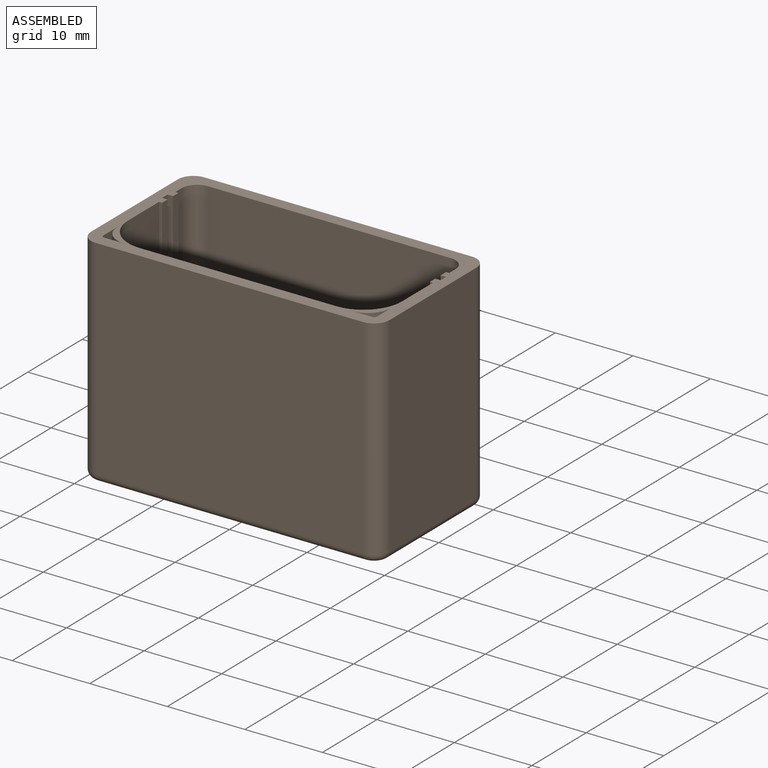
[diagram: assembled view]
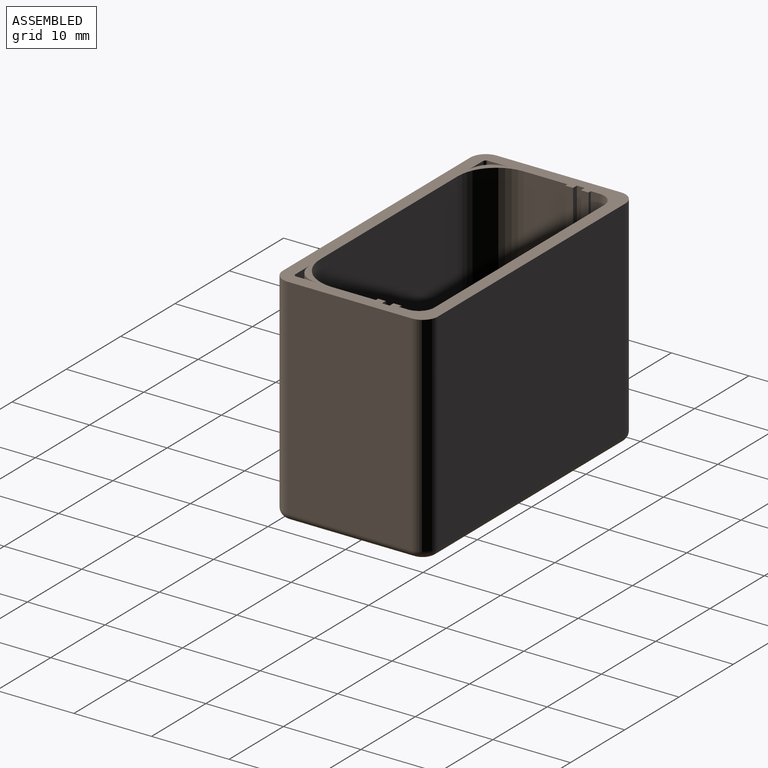
[diagram: assembled view, second angle]
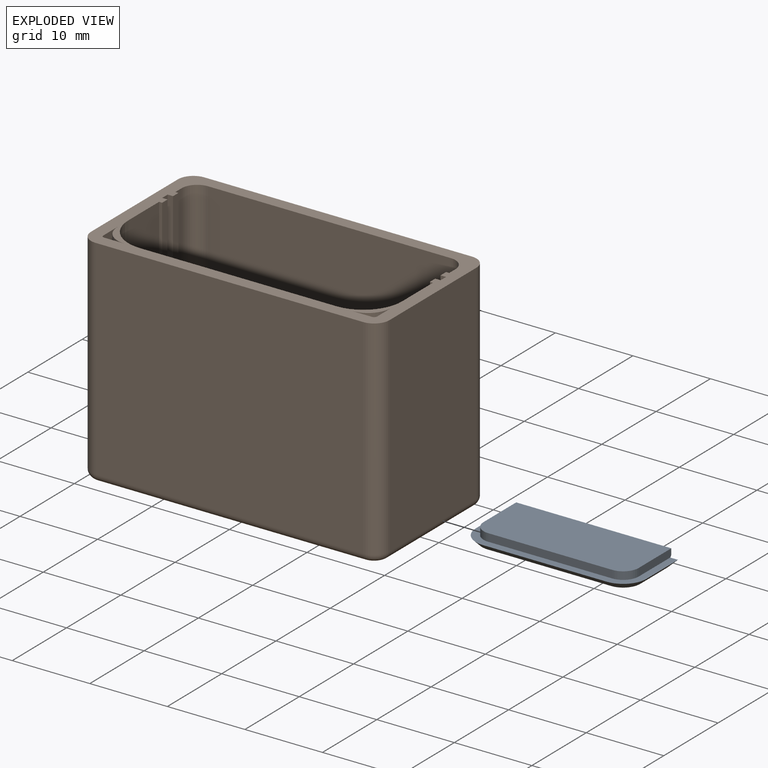
[diagram: exploded view]
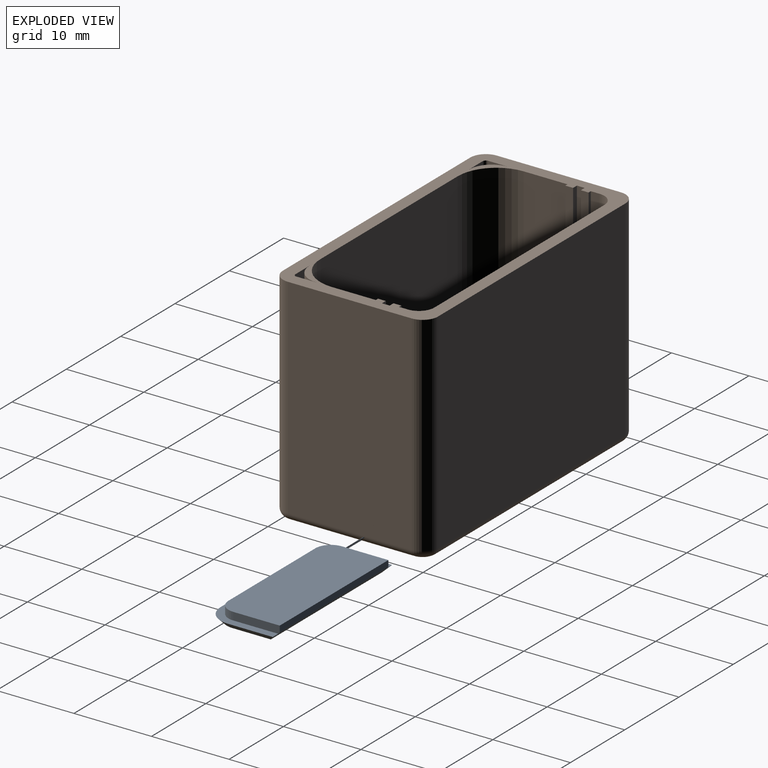
[diagram: exploded view, second angle]
ASSEMBLY  parts=2 mates=2
PART A: 15 faces, bbox 22x1.8x9 mm
  f0: plane 6x1mm, normal (1,0,0), area 6mm2, adj f4,f5,f7,f8,f14
  f1: plane 6x1mm, normal (-1,0,0), area 6mm2, adj f3,f5,f7,f8,f14
  f2: plane 16x1mm, normal (0,0,-1), area 16mm2, adj f3,f4,f7,f8
  f3: cylinder r=2mm len=2mm, axis (0,-1,0), area 3.1mm2, adj f1,f2,f7,f8
  f4: cylinder r=2mm len=2mm, axis (0,1,0), area 3.1mm2, adj f0,f2,f7,f8
  f5: plane 20x0.8mm, normal (0,0,1), area 16mm2, adj f0,f1,f7,f14
  f6: plane 20.4x7.2mm, normal (0,-1,0), area 144.8mm2, adj f9,f10,f11,f12,f13,f14
  f7: plane 20x8mm, normal (0,1,0), area 158.3mm2, adj f0,f1,f2,f3,f4,f5
  f8: plane 22x8.8mm, normal (0,1,0), area 35.5mm2, adj f0,f1,f2,f3,f4,f9,f10,f11
  f9: plane 16x0.8mm, normal (0,-0.71,-0.71), area 18.1mm2, adj f6,f8,f10,f11
  f10: cone r=2.2mm half-angle=45deg, axis (0,1,0), area 4.6mm2, adj f6,f8,f9,f12
  f11: cone r=2.2mm half-angle=45deg, axis (0,1,0), area 4.6mm2, adj f6,f8,f9,f13
  f12: plane 5.8x0.8mm, normal (0.71,-0.71,0), area 6.1mm2, adj f6,f8,f10,f14
  f13: plane 5.8x0.8mm, normal (-0.71,-0.71,0), area 6.1mm2, adj f6,f8,f11,f14
  f14: plane 22x1mm, normal (0,-0.71,0.71), area 29.6mm2, adj f0,f1,f5,f6,f8,f12,f13
PART B: 116 faces, bbox 38.8x20.3x28 mm
  f0: plane 25x2.6mm, normal (0,1,0), area 65mm2, adj f1,f48,f109,f114
  f1: plane 3x3mm, normal (0,0,1), area 1.9mm2, adj f0,f47,f48,f114
  f2: plane 25x5.65mm, normal (-1,0,0), area 140.4mm2, adj f16,f46,f91,f109,f115
  f3: plane 3x3mm, normal (0,0,1), area 1.9mm2, adj f49,f50,f51,f112
  f4: plane 25.3x25mm, normal (0,1,0), area 632.5mm2, adj f16,f109,f113,f115
  f5: plane 25x5.65mm, normal (1,0,0), area 140.4mm2, adj f16,f52,f94,f109,f113
  f6: plane 31.3x25mm, normal (0,-1,0), area 702.1mm2, adj f15,f77,f78,f80,f109,f110,f111
  f7: plane 3.5x1mm, normal (0,1,0), area 3.5mm2, adj f8,f101,f103,f105
  f8: plane 36.5x18mm, normal (0,0,-1), area 423.6mm2, adj f7,f54,f55,f56,f57,f58,f59,f60
  f9: plane 17x1mm, normal (0,1,0), area 17mm2, adj f12,f13,f63,f103
  f10: plane 7x1mm, normal (1,0,0), area 7mm2, adj f12,f62,f63,f103
  f11: plane 7x1mm, normal (-1,0,0), area 7mm2, adj f13,f62,f63,f103
  f12: cylinder r=2mm len=2mm, axis (0,0,-1), area 3.1mm2, adj f9,f10,f63,f103
  f13: cylinder r=2mm len=2mm, axis (0,0,1), area 3.1mm2, adj f9,f11,f63,f103
  f14: plane 27.26x2.01mm, normal (0,0,1), area 22.5mm2, adj f21,f23,f24,f33,f44,f45,f71,f72
  f15: plane 35.9x5.6mm, normal (0,0,1), area 89mm2, adj f6,f17,f19,f20,f21,f22,f23,f33
  f16: plane 35.3x8.65mm, normal (0,0,1), area 278mm2, adj f2,f4,f5,f91,f92,f93,f94,f95
  f17: plane 1x0.92mm, normal (0.81,0.58,0), area 1.1mm2, adj f15,f63,f65,f67
  f18: plane 6x5mm, normal (0,-1,0), area 30mm2, adj f63,f66,f69,f80
  f19: plane 1x0.92mm, normal (-0.81,0.58,0), area 1.1mm2, adj f15,f63,f64,f68
  f20: plane 4.69x1mm, normal (0,1,0), area 4.7mm2, adj f15,f63,f64,f65
  f21: plane 3x0.75mm, normal (1,0,0), area 1.8mm2, adj f14,f15,f33,f63,f70,f71
  f22: plane 13.8x1mm, normal (0,-1,0), area 13.8mm2, adj f15,f63,f70,f73
  f23: plane 3x0.75mm, normal (-1,0,0), area 1.8mm2, adj f14,f15,f44,f63,f72,f73
  f24: plane 13.8x3mm, normal (0,1,0), area 41.4mm2, adj f14,f63,f71,f72
  f25: plane 34.5x27mm, normal (0,-1,0), area 931.5mm2, adj f26,f32,f61,f109
  f26: cylinder r=2mm len=27mm, axis (0,0,-1), area 84.8mm2, adj f25,f27,f59,f109
  f27: plane 27x16mm, normal (1,0,0), area 432mm2, adj f26,f28,f57,f109
  f28: cylinder r=2mm len=27mm, axis (0,0,-1), area 84.8mm2, adj f27,f29,f55,f109
  f29: plane 34.5x27mm, normal (0,1,0), area 931.5mm2, adj f28,f30,f54,f109
  f30: cylinder r=2mm len=27mm, axis (0,0,-1), area 84.8mm2, adj f29,f31,f56,f109
  f31: plane 27x16mm, normal (-1,0,0), area 432mm2, adj f30,f32,f58,f109
  f32: cylinder r=2mm len=27mm, axis (0,0,-1), area 84.8mm2, adj f25,f31,f60,f109
  f33: plane 25x10.45mm, normal (0,1,0), area 34mm2, adj f14,f15,f21,f34,f53,f81,f88,f89
  f34: plane 25x1mm, normal (1,0,0), area 25mm2, adj f15,f33,f35,f109
  f35: plane 25x0.7mm, normal (0,-1,0), area 17.5mm2, adj f15,f34,f36,f109
  f36: plane 25x1mm, normal (1,0,0), area 25mm2, adj f15,f35,f37,f109
  f37: plane 25x0.4mm, normal (0,1,0), area 10mm2, adj f15,f36,f38,f109
  f38: plane 25x1.15mm, normal (1,0,0), area 28.8mm2, adj f15,f37,f109,f111
  f39: plane 25x1.15mm, normal (-1,0,0), area 28.8mm2, adj f15,f40,f109,f110
  f40: plane 25x0.4mm, normal (0,1,0), area 10mm2, adj f15,f39,f41,f109
  f41: plane 25x1mm, normal (-1,0,0), area 25mm2, adj f15,f40,f42,f109
  f42: plane 25x0.7mm, normal (0,-1,0), area 17.5mm2, adj f15,f41,f43,f109
  f43: plane 25x1mm, normal (-1,0,0), area 25mm2, adj f15,f42,f44,f109
  f44: plane 25x10.45mm, normal (0,1,0), area 37mm2, adj f14,f15,f23,f43,f45,f109
  f45: plane 23x1mm, normal (-1,0,0), area 23mm2, adj f14,f44,f46,f109
  f46: plane 23x0.4mm, normal (0,-1,0), area 9.2mm2, adj f2,f45,f91,f109
  f47: plane 25x2.6mm, normal (-1,0,0), area 65mm2, adj f1,f48,f109,f114
  f48: cylinder r=0.4mm len=25mm, axis (0,0,-1), area 15.7mm2, adj f0,f1,f47,f109
  f49: plane 25x2.6mm, normal (0,1,0), area 65mm2, adj f3,f50,f109,f112
  f50: cylinder r=0.4mm len=25mm, axis (0,0,-1), area 15.7mm2, adj f3,f49,f51,f109
  f51: plane 25x2.6mm, normal (1,0,0), area 65mm2, adj f3,f50,f109,f112
  f52: plane 23x0.4mm, normal (0,-1,0), area 9.2mm2, adj f5,f53,f94,f109
  f53: plane 23x1mm, normal (1,0,0), area 23mm2, adj f33,f52,f81,f109
  f54: cylinder r=1mm len=34.5mm, axis (-1,0,0), area 54.2mm2, adj f8,f29,f55,f56,f62
  f55: torus R=1mm, axis (0,0,1), area 4mm2, adj f8,f28,f54,f57
  f56: torus R=1mm, axis (0,0,1), area 4mm2, adj f8,f30,f54,f58
  f57: cylinder r=1mm len=16mm, axis (0,1,0), area 25.1mm2, adj f8,f27,f55,f59
  f58: cylinder r=1mm len=16mm, axis (0,-1,0), area 25.1mm2, adj f8,f31,f56,f60
  f59: torus R=1mm, axis (0,0,1), area 4mm2, adj f8,f26,f57,f61
  f60: torus R=1mm, axis (0,0,1), area 4mm2, adj f8,f32,f58,f61
  f61: cylinder r=1mm len=34.5mm, axis (1,0,0), area 54.2mm2, adj f8,f25,f59,f60
  f62: plane 23x2mm, normal (0,-1,0), area 44mm2, adj f10,f11,f54,f63,f98,f102,f103
  f63: plane 21x9mm, normal (0,0,-1), area 127.9mm2, adj f9,f10,f11,f12,f13,f17,f18,f19
  f64: cylinder r=1mm len=1mm, axis (0,0,1), area 1mm2, adj f15,f19,f20,f63
  f65: cylinder r=1mm len=1mm, axis (0,0,-1), area 1mm2, adj f15,f17,f20,f63
  f66: cylinder r=1mm len=5mm, axis (0,0,1), area 7.6mm2, adj f18,f63,f67,f80
  f67: cylinder r=1mm len=5mm, axis (0,0,1), area 2mm2, adj f15,f17,f63,f66,f80,f86
  f68: cylinder r=1mm len=5mm, axis (0,0,1), area 2mm2, adj f15,f19,f63,f69,f80,f87
  f69: cylinder r=1mm len=5mm, axis (0,0,-1), area 7.6mm2, adj f18,f63,f68,f80
  f70: cylinder r=0.6mm len=1mm, axis (0,0,-1), area 0.9mm2, adj f15,f21,f22,f63
  f71: cylinder r=0.6mm len=3mm, axis (0,0,-1), area 2.8mm2, adj f14,f21,f24,f63
  f72: cylinder r=0.6mm len=3mm, axis (0,0,1), area 2.8mm2, adj f14,f23,f24,f63
  f73: cylinder r=0.6mm len=1mm, axis (0,0,1), area 0.9mm2, adj f15,f22,f23,f63
  f74: plane 6.18x4mm, normal (0,-1,0), area 24.7mm2, adj f15,f79,f80,f86
  f75: plane 6.18x4mm, normal (0,-1,0), area 24.7mm2, adj f15,f76,f80,f87
  f76: plane 4x1.75mm, normal (1,0,0), area 7mm2, adj f15,f75,f77,f80
  f77: cylinder r=3.5mm len=4mm, axis (0,0,-1), area 10.6mm2, adj f6,f15,f76,f80
  f78: cylinder r=3.5mm len=4mm, axis (0,0,-1), area 10.6mm2, adj f6,f15,f79,f80
  f79: plane 4x1.75mm, normal (-1,0,0), area 7mm2, adj f15,f74,f78,f80
  f80: plane 22x4.15mm, normal (0,0,1), area 68.8mm2, adj f6,f18,f66,f67,f68,f69,f74,f75
  f81: plane 4.25x1mm, normal (0,0,1), area 4.3mm2, adj f33,f53,f88,f94
  f82: cylinder r=1.15mm len=2.5mm, axis (0,0,-1), area 18.1mm2, adj f83,f107
  f83: plane 2.3x2.3mm, normal (0,0,-1), area 4.2mm2, adj f82
  f84: cylinder r=1.15mm len=2.5mm, axis (0,0,-1), area 18.1mm2, adj f85,f108
  f85: plane 2.3x2.3mm, normal (0,0,-1), area 4.2mm2, adj f84
  f86: cylinder r=1mm len=4mm, axis (0,0,1), area 8mm2, adj f15,f67,f74,f80
  f87: cylinder r=1mm len=4mm, axis (0,0,1), area 8mm2, adj f15,f68,f75,f80
  f88: plane 1.27x1mm, normal (1,0,0), area 1.1mm2, adj f33,f81,f90,f94
  f89: plane 1.27x1mm, normal (-1,0,0), area 1.1mm2, adj f14,f33,f90,f94
  f90: plane 3x1.27mm, normal (0,0,1), area 3.8mm2, adj f33,f88,f89,f94
  f91: cylinder r=2mm len=9.11mm, axis (1,0,0), area 27.9mm2, adj f2,f14,f16,f46,f96
  f92: torus R=3.1mm, axis (0,0,1), area 5.2mm2, adj f14,f16,f93,f96
  f93: cylinder r=2mm len=13.5mm, axis (1,0,0), area 42.4mm2, adj f14,f16,f92,f95
  f94: cylinder r=2mm len=9.11mm, axis (1,0,0), area 24.7mm2, adj f5,f14,f16,f52,f81,f88,f89,f90
  f95: torus R=3.1mm, axis (0,0,1), area 5.2mm2, adj f14,f16,f93,f97
  f96: bspline ~2.16x2mm, area 1.3mm2, adj f14,f91,f92
  f97: bspline ~2.16x2mm, area 1.3mm2, adj f14,f94,f95
  f98: plane 7x1mm, normal (-1,0,0), area 7mm2, adj f8,f62,f99,f103
  f99: cylinder r=3mm len=3mm, axis (0,0,-1), area 4.7mm2, adj f8,f98,f100,f103
  f100: plane 3.5x1mm, normal (0,1,0), area 3.5mm2, adj f8,f99,f103,f106
  f101: cylinder r=3mm len=3mm, axis (0,0,-1), area 4.7mm2, adj f7,f8,f102,f103
  f102: plane 7x1mm, normal (1,0,0), area 7mm2, adj f8,f62,f101,f103
  f103: plane 23x10mm, normal (0,0,-1), area 38.9mm2, adj f7,f9,f10,f11,f12,f13,f62,f98
  f104: plane 10x1mm, normal (0,0.8,-0.6), area 10.7mm2, adj f8,f103,f105,f106
  f105: cylinder r=1mm len=1mm, axis (0,0,1), area 0.9mm2, adj f7,f8,f104
  f106: cylinder r=1mm len=1mm, axis (0,0,-1), area 0.9mm2, adj f8,f100,f104
  f107: torus R=1.65mm, axis (0,0,-1), area 6.6mm2, adj f63,f82
  f108: torus R=1.65mm, axis (0,0,-1), area 6.6mm2, adj f63,f84
  f109: plane 38.5x20mm, normal (0,0,1), area 183.2mm2, adj f0,f2,f4,f5,f6,f25,f26,f27
  f110: cylinder r=2mm len=25mm, axis (0,0,-1), area 78.5mm2, adj f6,f15,f39,f109
  f111: cylinder r=2mm len=25mm, axis (0,0,-1), area 78.5mm2, adj f6,f15,f38,f109
  f112: cylinder r=3mm len=25mm, axis (0,0,-1), area 117.8mm2, adj f3,f49,f51,f109
  f113: cylinder r=5mm len=25mm, axis (0,0,-1), area 196.3mm2, adj f4,f5,f16,f109
  f114: cylinder r=3mm len=25mm, axis (0,0,-1), area 117.8mm2, adj f0,f1,f47,f109
  f115: cylinder r=5mm len=25mm, axis (0,0,-1), area 196.3mm2, adj f2,f4,f16,f109
PLACE A rot(axis=(0,0.71,0.71),180deg) t=(-0.01,4.39,-4.81)mm
PLACE B t=(-0.01,0.01,-6.61)mm
MATE parallel A.f7 <-> B.f63  axis (0,0,1) through (-0.01,4.43,-4.81)mm
MATE planar A.f6 <-> B.f8  axis (0,0,-1) through (-0.01,3.84,-6.61)mm
